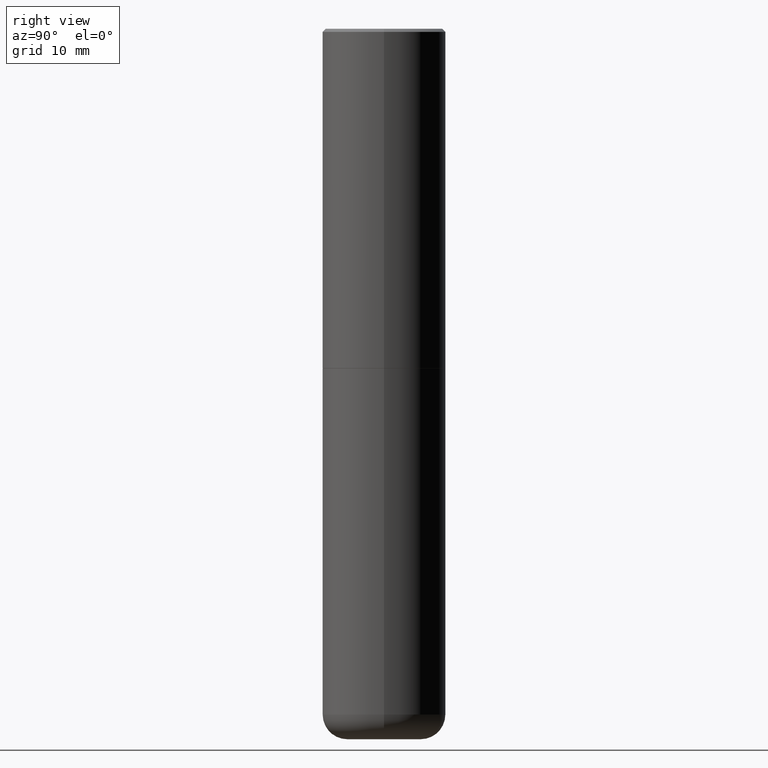
[diagram: clean part render]
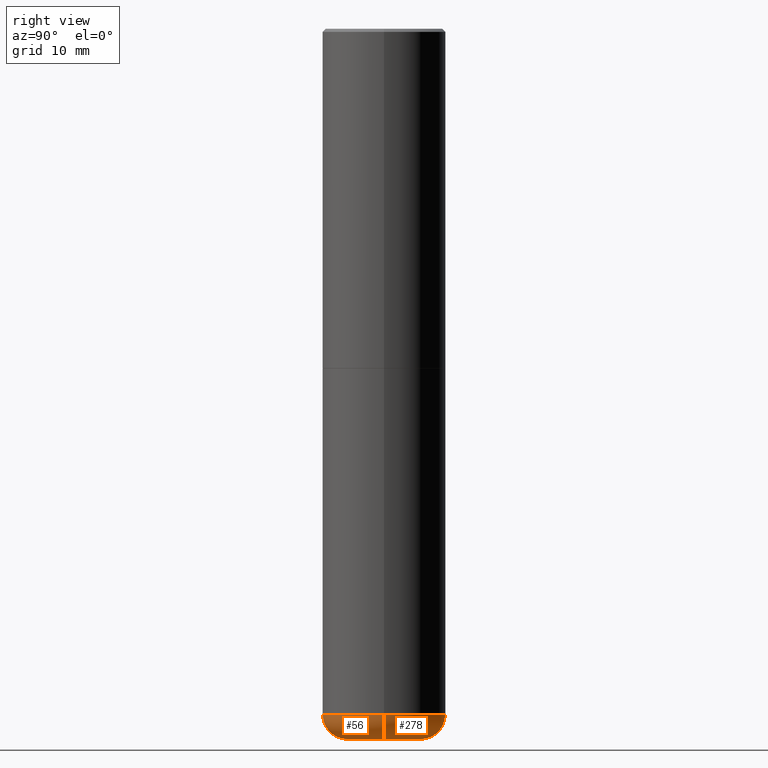
[diagram: same view with one multi-face feature highlighted, each face labeled with its STEP entity id]
A machine part, right view. The highlighted faces form ONE feature: a constant-radius fillet chain: 2 tangent blend faces with common blend radius 4.0005 mm. The faces share edges in the B-rep.
Their STEP definitions:
[1] entity #278 (Torus):
#14 = EDGE_CURVE ( 'NONE', #258, #402, #199, .T. ) ;
#27 = CARTESIAN_POINT ( 'NONE',  ( 1.068694322990966450E-28, -1.525812259887842897E-14, -4.370099999999998985 ) ) ;
#46 = CARTESIAN_POINT ( 'NONE',  ( -0.3937000000000001054, -1.246071584819091497E-14, -4.370099999999998985 ) ) ;
#64 = DIRECTION ( 'NONE',  ( 1.000000000000000000, -6.982962677686261977E-15, 4.883557194083110659E-29 ) ) ;
#65 = EDGE_LOOP ( 'NONE', ( #368, #261, #169, #138 ) ) ;
#71 = AXIS2_PLACEMENT_3D ( 'NONE', #380, #347, #377 ) ;
#90 = DIRECTION ( 'NONE',  ( -2.445468806185136597E-29, 3.491481338843145583E-15, 1.000000000000000000 ) ) ;
#92 = DIRECTION ( 'NONE',  ( 1.000000000000000000, -6.982962677686262766E-15, 0.000000000000000000 ) ) ;
#93 = CIRCLE ( 'NONE', #71, 0.1575000000000000566 ) ;
#122 = CARTESIAN_POINT ( 'NONE',  ( -0.2362000000000000766, -1.329522240803589203E-14, -4.527599999999999625 ) ) ;
#123 = DIRECTION ( 'NONE',  ( 1.000000000000000000, -6.982962677686262766E-15, 0.000000000000000000 ) ) ;
#138 = ORIENTED_EDGE ( 'NONE', *, *, #148, .F. ) ;
#143 = CARTESIAN_POINT ( 'NONE',  ( 0.2362000000000000210, -1.690749838334792550E-14, -4.370099999999998985 ) ) ;
#147 = DIRECTION ( 'NONE',  ( -6.982962677686266711E-15, -1.000000000000000000, 3.491481338843145583E-15 ) ) ;
#148 = EDGE_CURVE ( 'NONE', #389, #258, #272, .T. ) ;
#158 = CARTESIAN_POINT ( 'NONE',  ( 1.068694322990966450E-28, -1.525812259887842897E-14, -4.370099999999998985 ) ) ;
#160 = FACE_OUTER_BOUND ( 'NONE', #65, .T. ) ;
#161 = AXIS2_PLACEMENT_3D ( 'NONE', #214, #182, #92 ) ;
#167 = AXIS2_PLACEMENT_3D ( 'NONE', #158, #252, #64 ) ;
#169 = ORIENTED_EDGE ( 'NONE', *, *, #14, .F. ) ;
#182 = DIRECTION ( 'NONE',  ( -2.445468806185136597E-29, 3.491481338843145583E-15, 1.000000000000000000 ) ) ;
#191 = AXIS2_PLACEMENT_3D ( 'NONE', #27, #90, #123 ) ;
#199 = CIRCLE ( 'NONE', #191, 0.3937000000000000499 ) ;
#214 = CARTESIAN_POINT ( 'NONE',  ( 1.107210456688382298E-28, -1.580803090974622389E-14, -4.527599999999999625 ) ) ;
#219 = CIRCLE ( 'NONE', #161, 0.2362000000000000766 ) ;
#226 = TOROIDAL_SURFACE ( 'NONE', #167, 0.2362000000000000210, 0.1575000000000000844 ) ;
#249 = EDGE_CURVE ( 'NONE', #350, #402, #93, .T. ) ;
#252 = DIRECTION ( 'NONE',  ( -2.445468806185136597E-29, 3.491481338843145583E-15, 1.000000000000000000 ) ) ;
#258 = VERTEX_POINT ( 'NONE', #387 ) ;
#261 = ORIENTED_EDGE ( 'NONE', *, *, #249, .T. ) ;
#270 = DIRECTION ( 'NONE',  ( 1.000000000000000000, -6.982962677686259611E-15, 0.000000000000000000 ) ) ;
#272 = CIRCLE ( 'NONE', #313, 0.1575000000000000566 ) ;
#278 = ADVANCED_FACE ( 'NONE', ( #160 ), #226, .T. ) ;
#300 = EDGE_CURVE ( 'NONE', #389, #350, #219, .T. ) ;
#313 = AXIS2_PLACEMENT_3D ( 'NONE', #143, #147, #270 ) ;
#317 = CARTESIAN_POINT ( 'NONE',  ( 0.2362000000000000766, -1.745740669421572042E-14, -4.527599999999999625 ) ) ;
#347 = DIRECTION ( 'NONE',  ( 7.105427357601001859E-15, 1.000000000000000000, -3.491481338843145583E-15 ) ) ;
#350 = VERTEX_POINT ( 'NONE', #122 ) ;
#368 = ORIENTED_EDGE ( 'NONE', *, *, #300, .T. ) ;
#377 = DIRECTION ( 'NONE',  ( -1.000000000000000000, 7.105427357601006592E-15, 0.000000000000000000 ) ) ;
#380 = CARTESIAN_POINT ( 'NONE',  ( -0.2362000000000000210, -1.357982065701307100E-14, -4.370099999999998985 ) ) ;
#387 = CARTESIAN_POINT ( 'NONE',  ( 0.3937000000000001054, -1.800731500508351219E-14, -4.370099999999998985 ) ) ;
#389 = VERTEX_POINT ( 'NONE', #317 ) ;
#402 = VERTEX_POINT ( 'NONE', #46 ) ;
[2] entity #56 (Torus):
#19 = ORIENTED_EDGE ( 'NONE', *, *, #148, .T. ) ;
#21 = ORIENTED_EDGE ( 'NONE', *, *, #144, .F. ) ;
#22 = DIRECTION ( 'NONE',  ( -2.445468806185136597E-29, 3.491481338843145583E-15, 1.000000000000000000 ) ) ;
#46 = CARTESIAN_POINT ( 'NONE',  ( -0.3937000000000001054, -1.246071584819091497E-14, -4.370099999999998985 ) ) ;
#49 = EDGE_CURVE ( 'NONE', #350, #389, #403, .T. ) ;
#54 = FACE_OUTER_BOUND ( 'NONE', #385, .T. ) ;
#56 = ADVANCED_FACE ( 'NONE', ( #54 ), #140, .T. ) ;
#57 = CARTESIAN_POINT ( 'NONE',  ( 1.068694322990966450E-28, -1.525812259887842897E-14, -4.370099999999998985 ) ) ;
#71 = AXIS2_PLACEMENT_3D ( 'NONE', #380, #347, #377 ) ;
#81 = DIRECTION ( 'NONE',  ( 1.000000000000000000, -6.982962677686262766E-15, 0.000000000000000000 ) ) ;
#85 = DIRECTION ( 'NONE',  ( -2.445468806185136597E-29, 3.491481338843145583E-15, 1.000000000000000000 ) ) ;
#93 = CIRCLE ( 'NONE', #71, 0.1575000000000000566 ) ;
#122 = CARTESIAN_POINT ( 'NONE',  ( -0.2362000000000000766, -1.329522240803589203E-14, -4.527599999999999625 ) ) ;
#124 = CIRCLE ( 'NONE', #356, 0.3937000000000000499 ) ;
#140 = TOROIDAL_SURFACE ( 'NONE', #172, 0.2362000000000000210, 0.1575000000000000844 ) ;
#143 = CARTESIAN_POINT ( 'NONE',  ( 0.2362000000000000210, -1.690749838334792550E-14, -4.370099999999998985 ) ) ;
#144 = EDGE_CURVE ( 'NONE', #402, #258, #124, .T. ) ;
#147 = DIRECTION ( 'NONE',  ( -6.982962677686266711E-15, -1.000000000000000000, 3.491481338843145583E-15 ) ) ;
#148 = EDGE_CURVE ( 'NONE', #389, #258, #272, .T. ) ;
#163 = ORIENTED_EDGE ( 'NONE', *, *, #249, .F. ) ;
#171 = DIRECTION ( 'NONE',  ( 1.000000000000000000, -6.982962677686261977E-15, 4.883557194083110659E-29 ) ) ;
#172 = AXIS2_PLACEMENT_3D ( 'NONE', #307, #85, #171 ) ;
#207 = CARTESIAN_POINT ( 'NONE',  ( 1.107210456688382298E-28, -1.580803090974622389E-14, -4.527599999999999625 ) ) ;
#249 = EDGE_CURVE ( 'NONE', #350, #402, #93, .T. ) ;
#258 = VERTEX_POINT ( 'NONE', #387 ) ;
#270 = DIRECTION ( 'NONE',  ( 1.000000000000000000, -6.982962677686259611E-15, 0.000000000000000000 ) ) ;
#272 = CIRCLE ( 'NONE', #313, 0.1575000000000000566 ) ;
#294 = ORIENTED_EDGE ( 'NONE', *, *, #49, .T. ) ;
#305 = AXIS2_PLACEMENT_3D ( 'NONE', #207, #335, #372 ) ;
#307 = CARTESIAN_POINT ( 'NONE',  ( 1.068694322990966450E-28, -1.525812259887842897E-14, -4.370099999999998985 ) ) ;
#313 = AXIS2_PLACEMENT_3D ( 'NONE', #143, #147, #270 ) ;
#317 = CARTESIAN_POINT ( 'NONE',  ( 0.2362000000000000766, -1.745740669421572042E-14, -4.527599999999999625 ) ) ;
#335 = DIRECTION ( 'NONE',  ( -2.445468806185136597E-29, 3.491481338843145583E-15, 1.000000000000000000 ) ) ;
#347 = DIRECTION ( 'NONE',  ( 7.105427357601001859E-15, 1.000000000000000000, -3.491481338843145583E-15 ) ) ;
#350 = VERTEX_POINT ( 'NONE', #122 ) ;
#356 = AXIS2_PLACEMENT_3D ( 'NONE', #57, #22, #81 ) ;
#372 = DIRECTION ( 'NONE',  ( 1.000000000000000000, -6.982962677686262766E-15, 0.000000000000000000 ) ) ;
#377 = DIRECTION ( 'NONE',  ( -1.000000000000000000, 7.105427357601006592E-15, 0.000000000000000000 ) ) ;
#380 = CARTESIAN_POINT ( 'NONE',  ( -0.2362000000000000210, -1.357982065701307100E-14, -4.370099999999998985 ) ) ;
#385 = EDGE_LOOP ( 'NONE', ( #163, #294, #19, #21 ) ) ;
#387 = CARTESIAN_POINT ( 'NONE',  ( 0.3937000000000001054, -1.800731500508351219E-14, -4.370099999999998985 ) ) ;
#389 = VERTEX_POINT ( 'NONE', #317 ) ;
#402 = VERTEX_POINT ( 'NONE', #46 ) ;
#403 = CIRCLE ( 'NONE', #305, 0.2362000000000000766 ) ;